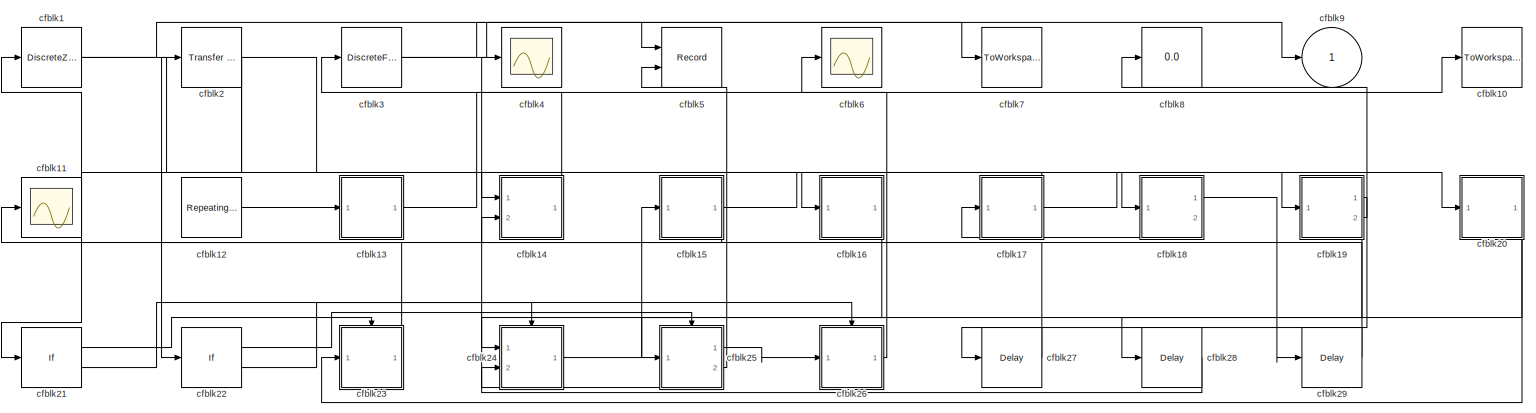
[diagram: root canvas - part 1/1, most of the canvas]
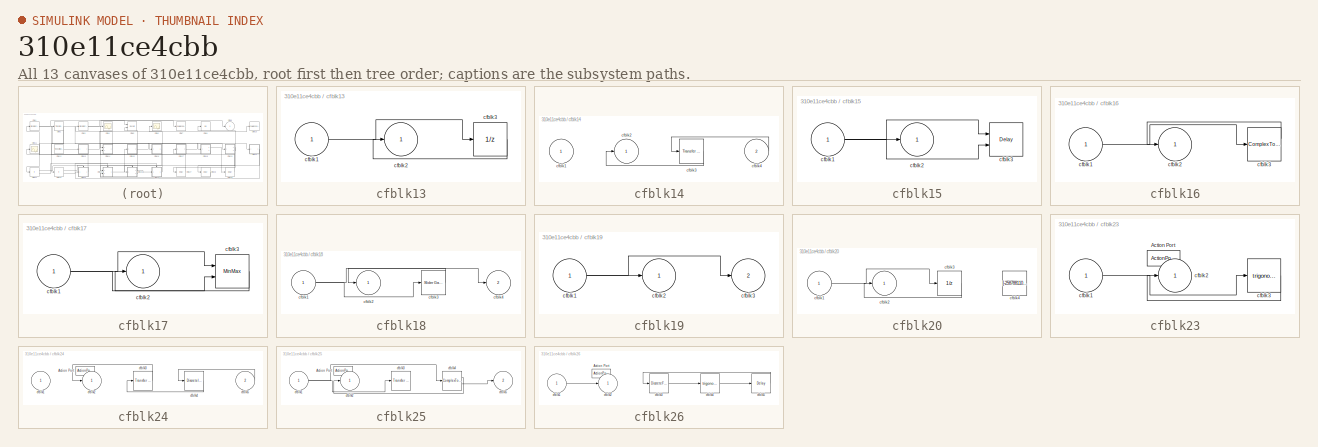
[diagram: thumbnail index - all 13 canvases of the model, root first then tree order]
MODEL slx_310e11ce4cbb
KIND model
CONFIG AbsTol = auto
CONFIG EnableMultiTasking = off
CONFIG FixedStep = auto
CONFIG MaxStep = auto
CONFIG MinStep = auto
CONFIG RelTol = 1e-3
CONFIG SampleTimeConstraint = Unconstrained
CONFIG SolverName = VariableStepAuto
CONFIG StartTime = 0.0
CONFIG StopTime = 10.0
BLOCK [DiscreteZeroPole] cfblk1
  Gain = 1
  Poles = [0 0.5]
BLOCK [ToWorkspace] cfblk10
  FixptAsFi = on
  MaxDataPoints = inf
  Ports = [1]
  SampleTime = -1
  SaveFormat = Timeseries
  VariableName = uyjfrjl
BLOCK [Scope] cfblk11
  Floating = off
  NumInputPorts = 1
  Ports = [1]
BLOCK [Reference] cfblk12  REF=simulink/Sources/Repeating
Sequence
Interpolated
  Ports = [0, 1]
  SourceBlock = simulink/Sources/Repeating\nSequence\nInterpolated
  SourceProductBaseCode = SL
  SourceType = Repeating Sequence Interpolated
BLOCK [SubSystem] cfblk13
  Ports = [1, 1]
  RequestExecContextInheritance = off
BLOCK [Inport] cfblk13/cfblk1
BLOCK [Outport] cfblk13/cfblk2
BLOCK [UnitDelay] cfblk13/cfblk3
  HasFrameUpgradeWarning = on
BLOCK [SubSystem] cfblk14
  Ports = [2, 1]
  RequestExecContextInheritance = off
BLOCK [Inport] cfblk14/cfblk1
BLOCK [Outport] cfblk14/cfblk2
BLOCK [Reference] cfblk14/cfblk3  REF=simulink/Discrete/Transfer Fcn
First Order
  Ports = [1, 1]
  SourceBlock = simulink/Discrete/Transfer Fcn\nFirst Order
  SourceProductBaseCode = SL
  SourceType = First Order Transfer Fcn
BLOCK [Inport] cfblk14/cfblk4
  Port = 2
BLOCK [SubSystem] cfblk15
  Ports = [1, 1]
  RequestExecContextInheritance = off
BLOCK [Inport] cfblk15/cfblk1
BLOCK [Outport] cfblk15/cfblk2
BLOCK [Delay] cfblk15/cfblk3
  InputPortMap = u0,e6
  Ports = [2, 1]
  SampleTime = 1
  ShowEnablePort = on
BLOCK [SubSystem] cfblk16
  Ports = [1, 1]
  RequestExecContextInheritance = off
BLOCK [Inport] cfblk16/cfblk1
BLOCK [Outport] cfblk16/cfblk2
BLOCK [ComplexToMagnitudeAngle] cfblk16/cfblk3
  Ports = [1, 2]
BLOCK [SubSystem] cfblk17
  Ports = [1, 1]
  RequestExecContextInheritance = off
BLOCK [Inport] cfblk17/cfblk1
BLOCK [Outport] cfblk17/cfblk2
BLOCK [MinMax] cfblk17/cfblk3
  Inputs = 2
  Ports = [2, 1]
BLOCK [SubSystem] cfblk18
  Ports = [1, 2]
  RequestExecContextInheritance = off
BLOCK [Inport] cfblk18/cfblk1
BLOCK [Outport] cfblk18/cfblk2
BLOCK [Reference] cfblk18/cfblk3  REF=simulink/Math
Operations/Slider
Gain
  Ports = [1, 1]
  SourceBlock = simulink/Math\nOperations/Slider\nGain
  SourceProductBaseCode = SL
  SourceType = Slider Gain
BLOCK [Outport] cfblk18/cfblk4
  Port = 2
BLOCK [SubSystem] cfblk19
  Ports = [1, 2]
  RequestExecContextInheritance = off
BLOCK [Inport] cfblk19/cfblk1
BLOCK [Outport] cfblk19/cfblk2
BLOCK [Outport] cfblk19/cfblk3
  Port = 2
BLOCK [Reference] cfblk2  REF=simulink/Discrete/Transfer Fcn
Real Zero
  Ports = [1, 1]
  SourceBlock = simulink/Discrete/Transfer Fcn\nReal Zero
  SourceProductBaseCode = SL
  SourceType = Transfer Fcn Real Zero
BLOCK [SubSystem] cfblk20
  Ports = [1, 1]
  RequestExecContextInheritance = off
BLOCK [Inport] cfblk20/cfblk1
BLOCK [Outport] cfblk20/cfblk2
BLOCK [UnitDelay] cfblk20/cfblk3
  HasFrameUpgradeWarning = on
BLOCK [Constant] cfblk20/cfblk4
  SampleTime = 1
  Value = [-258788110.732950]
BLOCK [If] cfblk21
  IfExpression = u1 >= 0
  Ports = [1, 2]
  SampleTime = 1
BLOCK [If] cfblk22
  IfExpression = u1 >= 0
  Ports = [1, 2]
  SampleTime = 1
BLOCK [SubSystem] cfblk23
  Ports = [1, 1, 0, 0, 0, 0, 0, 1]
  RequestExecContextInheritance = off
  TreatAsAtomicUnit = on
BLOCK [ActionPort] cfblk23/Action Port
  ActionPortLabel = if(u1 >= 0)
BLOCK [Inport] cfblk23/cfblk1
BLOCK [Outport] cfblk23/cfblk2
BLOCK [Trigonometry] cfblk23/cfblk3
  Ports = [1, 1]
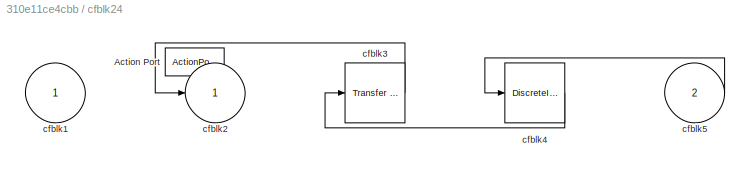
BLOCK [SubSystem] cfblk24
  Ports = [2, 1, 0, 0, 0, 0, 0, 1]
  RequestExecContextInheritance = off
  TreatAsAtomicUnit = on
BLOCK [ActionPort] cfblk24/Action Port
  ActionPortLabel = else
BLOCK [Inport] cfblk24/cfblk1
BLOCK [Outport] cfblk24/cfblk2
BLOCK [Reference] cfblk24/cfblk3  REF=simulink/Discrete/Transfer Fcn
Lead or Lag
  Ports = [1, 1]
  SourceBlock = simulink/Discrete/Transfer Fcn\nLead or Lag
  SourceProductBaseCode = SL
  SourceType = Lead or Lag Compensator
BLOCK [DiscreteIntegrator] cfblk24/cfblk4
  ICPrevOutput = DiscIntNeverNeededParam
  ICPrevScaledInput = DiscIntNeverNeededParam
  InitialConditionSetting = Auto
  Ports = [1, 1]
  SampleTime = -1
BLOCK [Inport] cfblk24/cfblk5
  Port = 2
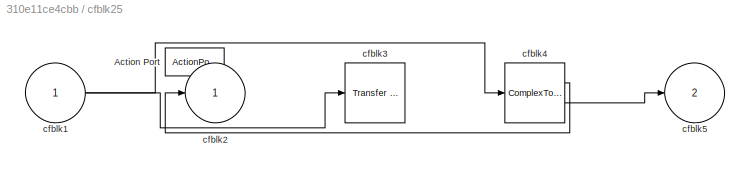
BLOCK [SubSystem] cfblk25
  Ports = [1, 2, 0, 0, 0, 0, 0, 1]
  RequestExecContextInheritance = off
  TreatAsAtomicUnit = on
BLOCK [ActionPort] cfblk25/Action Port
  ActionPortLabel = if(u1 >= 0)
BLOCK [Inport] cfblk25/cfblk1
BLOCK [Outport] cfblk25/cfblk2
BLOCK [Reference] cfblk25/cfblk3  REF=simulink/Discrete/Transfer Fcn
Lead or Lag
  Ports = [1, 1]
  SourceBlock = simulink/Discrete/Transfer Fcn\nLead or Lag
  SourceProductBaseCode = SL
  SourceType = Lead or Lag Compensator
BLOCK [ComplexToRealImag] cfblk25/cfblk4
  Ports = [1, 2]
BLOCK [Outport] cfblk25/cfblk5
  Port = 2
BLOCK [SubSystem] cfblk26
  Ports = [1, 1, 0, 0, 0, 0, 0, 1]
  RequestExecContextInheritance = off
  TreatAsAtomicUnit = on
BLOCK [ActionPort] cfblk26/Action Port
  ActionPortLabel = else
BLOCK [Inport] cfblk26/cfblk1
BLOCK [Outport] cfblk26/cfblk2
BLOCK [DiscreteFir] cfblk26/cfblk3
  InputPortMap = u0
  OutputPortMap = o0
  Ports = [1, 1]
BLOCK [Trigonometry] cfblk26/cfblk4
  Ports = [1, 1]
BLOCK [Delay] cfblk26/cfblk5
  InputPortMap = u0
  Ports = [1, 1]
BLOCK [Delay] cfblk27
  InputPortMap = u0
  Ports = [1, 1]
  SampleTime = 1
BLOCK [Delay] cfblk28
  InputPortMap = u0
  Ports = [1, 1]
  SampleTime = 1
BLOCK [Delay] cfblk29
  InputPortMap = u0
  Ports = [1, 1]
  SampleTime = 1
BLOCK [DiscreteFilter] cfblk3
  InputPortMap = u0
  Ports = [1, 1]
  SampleTime = 1
BLOCK [Scope] cfblk4
  Floating = off
  NumInputPorts = 1
  Ports = [1]
BLOCK [Record] cfblk5
  CompatibilityTag = XY
  FileSettingsInternal = {"entries":[{"content":{"excelSettings":{"content":{},"type":"Streamout.ExcelSettings"}},"type":"Streamout.FileSettingStorage","uuid":"7cc99ade-53f6-40a6-8694-561096d28d0c"}],"packageUris":["http://schema.mathworks.com/mf0/streamout_blocks/R2020a"],"version":"1.0"}
  Layout = [1 1]
  Ports = [2]
  SignalsInternal = {"entries":[{"content":{"signals":[{"content":{"blockPath":["sampleModel30/cfblk5"],"channel":[],"dimensions":[1],"domain":"sampleModel30/cfblk5","lineColor":"#a2142f","plots":[1],"port":1,"sid":[""],"signalID":1157,"signalName":"cfblk1"},"type":"RecordBlkView.Signal","uuid":"ceeb767c-0ab7-4fbb-801a-3501014df9b9"},{"content":{"blockPath":["sampleModel30/cfblk5"],"channel":[],"dimensions":[1],"doma...<+376ch>
  VisualizationBindings = {"xyplotplugin":{"info":[{"series":[{"bindingParametersList":[{"parameter":"X-Axis","signalID":1157,"signalName":"cfblk1"},{"parameter":"Y-Axis","signalID":1161,"signalName":"cfblk25:2"}],"seriesID":14340}],"subplotID":1}]}}
BLOCK [Scope] cfblk6
  Floating = off
  NumInputPorts = 1
  Ports = [1]
BLOCK [ToWorkspace] cfblk7
  FixptAsFi = on
  MaxDataPoints = inf
  Ports = [1]
  SampleTime = -1
  SaveFormat = Timeseries
  VariableName = cmqndhz
BLOCK [Display] cfblk8
  Decimation = 1
  Ports = [1]
BLOCK [Outport] cfblk9
LINE cfblk12:1 -> cfblk13:1
LINE cfblk13/cfblk1:1 -> cfblk13/cfblk3:1
LINE cfblk13/cfblk3:1 -> cfblk13/cfblk2:1
LINE cfblk13:1 -> cfblk10:1
LINE cfblk14/cfblk3:1 -> cfblk14/cfblk2:1
LINE cfblk14/cfblk4:1 -> cfblk14/cfblk3:1
LINE cfblk14:1 -> cfblk3:1
NET cfblk15/cfblk1:1 -> cfblk15/cfblk2:1, cfblk15/cfblk3:1, cfblk15/cfblk3:2
NET cfblk15:1 -> cfblk14:2, cfblk19:1
LINE cfblk16/cfblk1:1 -> cfblk16/cfblk3:1
LINE cfblk16/cfblk3:1 -> cfblk16/cfblk2:1
LINE cfblk16:1 -> cfblk24:1
NET cfblk17/cfblk1:1 -> cfblk17/cfblk3:1, cfblk17/cfblk3:2
LINE cfblk17/cfblk3:1 -> cfblk17/cfblk2:1
NET cfblk17:1 -> cfblk14:1, cfblk20:1
NET cfblk18/cfblk1:1 -> cfblk18/cfblk3:1, cfblk18/cfblk4:1
LINE cfblk18/cfblk3:1 -> cfblk18/cfblk2:1
LINE cfblk18:1 -> cfblk29:1
LINE cfblk18:2 -> cfblk17:1
NET cfblk19/cfblk1:1 -> cfblk19/cfblk2:1, cfblk19/cfblk3:1
LINE cfblk19:1 -> cfblk27:1
NET cfblk19:2 -> cfblk28:1, cfblk8:1
NET cfblk1:1 -> cfblk16:1, cfblk5:1
LINE cfblk20/cfblk1:1 -> cfblk20/cfblk3:1
LINE cfblk20/cfblk3:1 -> cfblk20/cfblk2:1
NET cfblk20:1 -> cfblk23:1, cfblk25:1
LINE cfblk21:1 -> cfblk23:ifaction
LINE cfblk21:2 -> cfblk24:ifaction
LINE cfblk22:1 -> cfblk25:ifaction
LINE cfblk22:2 -> cfblk26:ifaction
LINE cfblk23/cfblk1:1 -> cfblk23/cfblk3:1
LINE cfblk23/cfblk3:1 -> cfblk23/cfblk2:1
LINE cfblk23:1 -> cfblk11:1
LINE cfblk24/cfblk3:1 -> cfblk24/cfblk2:1
LINE cfblk24/cfblk4:1 -> cfblk24/cfblk3:1
LINE cfblk24/cfblk5:1 -> cfblk24/cfblk4:1
LINE cfblk24:1 -> cfblk15:1
NET cfblk25/cfblk1:1 -> cfblk25/cfblk3:1, cfblk25/cfblk4:1
LINE cfblk25/cfblk4:1 -> cfblk25/cfblk2:1
LINE cfblk25/cfblk4:2 -> cfblk25/cfblk5:1
LINE cfblk25:1 -> cfblk26:1
NET cfblk25:2 -> cfblk4:1, cfblk5:2
LINE cfblk26/cfblk1:1 -> cfblk26/cfblk2:1
LINE cfblk26/cfblk3:1 -> cfblk26/cfblk4:1
LINE cfblk26/cfblk4:1 -> cfblk26/cfblk5:1
LINE cfblk26/cfblk5:1 -> cfblk26/cfblk3:1
LINE cfblk26:1 -> cfblk6:1
LINE cfblk27:1 -> cfblk1:1
LINE cfblk28:1 -> cfblk24:2
LINE cfblk29:1 -> cfblk2:1
NET cfblk2:1 -> cfblk18:1, cfblk21:1, cfblk22:1
NET cfblk3:1 -> cfblk7:1, cfblk9:1
note: NET lines group one-source signal fan-out (src -> all destinations, sorted); 1:1 wires keep LINE
